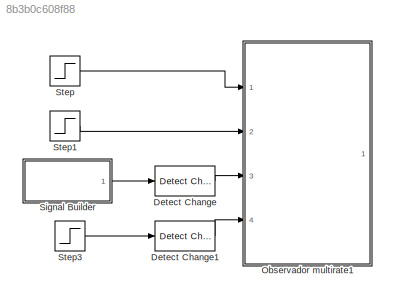
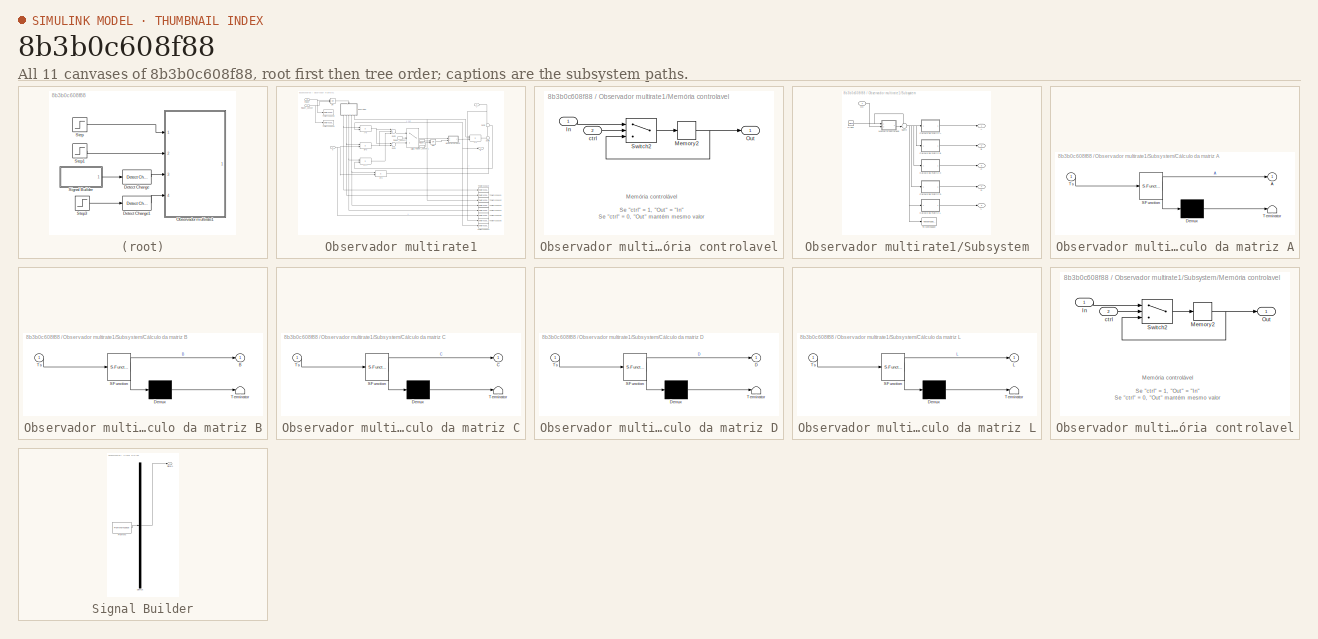
[diagram: thumbnail index - all 11 canvases of the model, root first then tree order]
MODEL slx_8b3b0c608f88
KIND model
BLOCK [Reference] Detect Change  REF=simulink/Logic and Bit
Operations/Detect
Change
  InputProcessing = Inherited
  OutDataTypeStr = boolean
  Ports = [1, 1]
  SourceBlock = simulink/Logic and Bit\nOperations/Detect\nChange
  SourceType = Detect Change
  vinit = 0
BLOCK [Reference] Detect Change1  REF=simulink/Logic and Bit
Operations/Detect
Change
  InputProcessing = Inherited
  OutDataTypeStr = boolean
  Ports = [1, 1]
  SourceBlock = simulink/Logic and Bit\nOperations/Detect\nChange
  SourceType = Detect Change
  vinit = 0
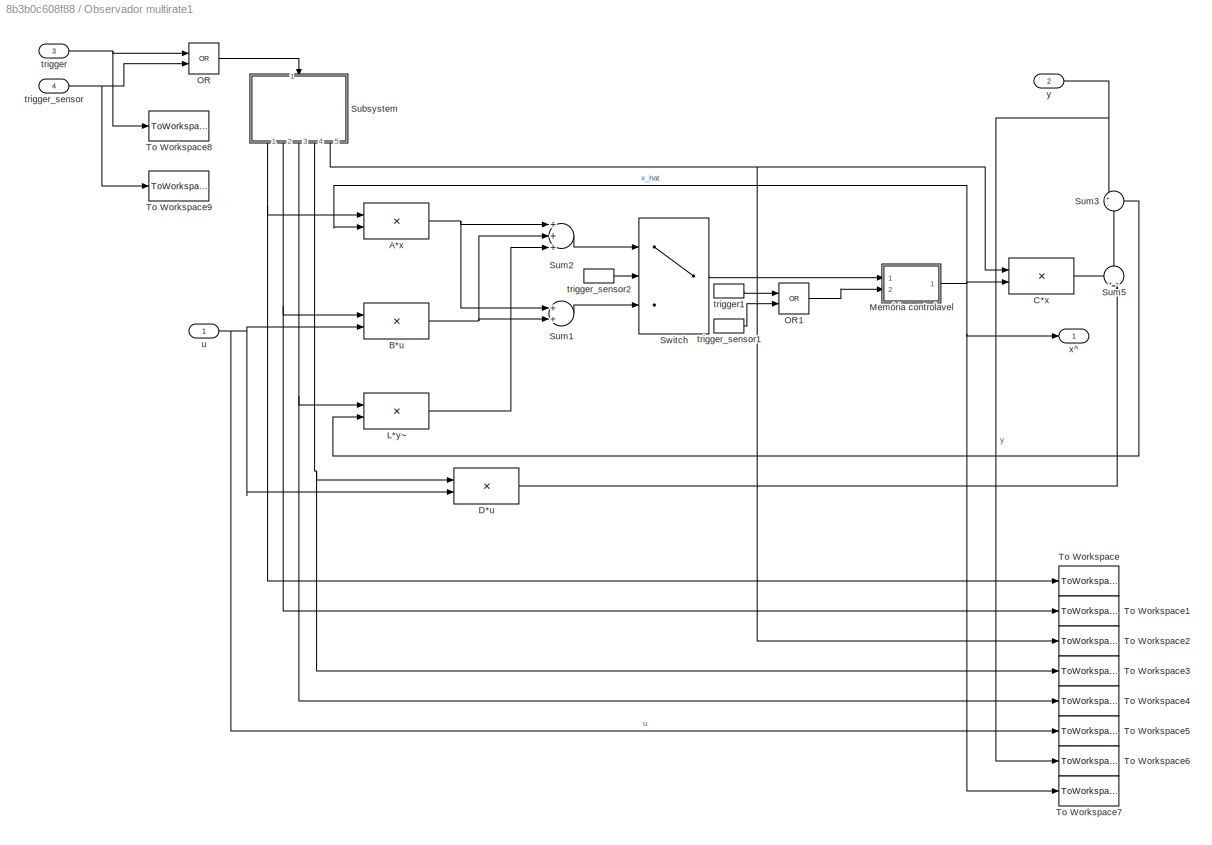
BLOCK [SubSystem] Observador multirate1
  FunctionWithSeparateData = off
  MaskHideContents = off
  MinAlgLoopOccurrences = off
  Opaque = off
  Ports = [4, 1]
  PropExecContextOutsideSubsystem = off
  RTWSystemCode = Auto
  RequestExecContextInheritance = off
BLOCK [Product] Observador multirate1/A*x
  InputSameDT = off
  Multiplication = Matrix(*)
  OutDataTypeStr = Inherit: Inherit via internal rule
  Ports = [2, 1]
  SaturateOnIntegerOverflow = off
BLOCK [Product] Observador multirate1/B*u
  InputSameDT = off
  Multiplication = Matrix(*)
  OutDataTypeStr = Inherit: Inherit via internal rule
  Ports = [2, 1]
  SaturateOnIntegerOverflow = off
BLOCK [Product] Observador multirate1/C*x
  InputSameDT = off
  Multiplication = Matrix(*)
  OutDataTypeStr = Inherit: Inherit via internal rule
  Ports = [2, 1]
  SaturateOnIntegerOverflow = off
BLOCK [Product] Observador multirate1/D*u
  InputSameDT = off
  Multiplication = Matrix(*)
  OutDataTypeStr = Inherit: Inherit via internal rule
  Ports = [2, 1]
  SaturateOnIntegerOverflow = off
BLOCK [Product] Observador multirate1/L*y~
  InputSameDT = off
  Multiplication = Matrix(*)
  OutDataTypeStr = Inherit: Inherit via internal rule
  Ports = [2, 1]
  SaturateOnIntegerOverflow = off
BLOCK [SubSystem] Observador multirate1/Memória controlavel
  FunctionWithSeparateData = off
  MaskHideContents = off
  MinAlgLoopOccurrences = off
  Opaque = off
  Ports = [2, 1]
  PropExecContextOutsideSubsystem = off
  RTWSystemCode = Auto
  RequestExecContextInheritance = off
BLOCK [Inport] Observador multirate1/Memória controlavel/In
  IconDisplay = Port number
BLOCK [Memory] Observador multirate1/Memória controlavel/Memory2
BLOCK [Outport] Observador multirate1/Memória controlavel/Out
  IconDisplay = Port number
BLOCK [Switch] Observador multirate1/Memória controlavel/Switch2
  InputSameDT = off
  SaturateOnIntegerOverflow = off
BLOCK [Inport] Observador multirate1/Memória controlavel/ctrl
  IconDisplay = Port number
  Port = 2
BLOCK [Logic] Observador multirate1/OR
  AllPortsSameDT = off
  Operator = OR
  OutDataTypeStr = boolean
  Ports = [2, 1]
BLOCK [Logic] Observador multirate1/OR1
  AllPortsSameDT = off
  Operator = OR
  OutDataTypeStr = boolean
  Ports = [2, 1]
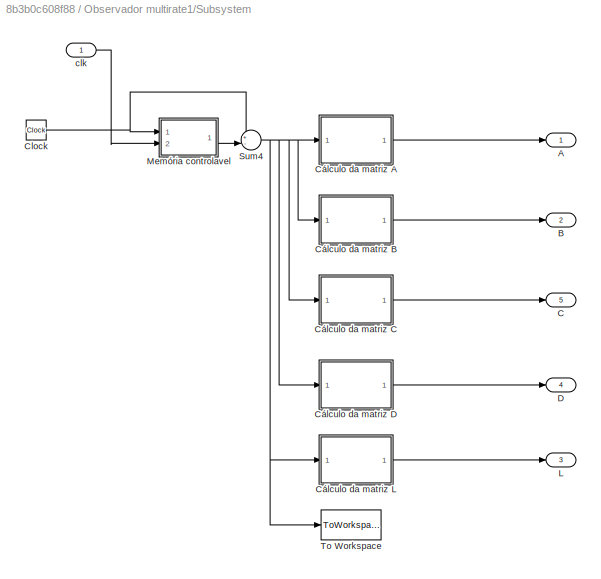
BLOCK [SubSystem] Observador multirate1/Subsystem
  FunctionWithSeparateData = off
  MaskHideContents = off
  MinAlgLoopOccurrences = off
  Opaque = off
  Ports = [1, 5]
  PropExecContextOutsideSubsystem = off
  RTWSystemCode = Auto
  RequestExecContextInheritance = off
BLOCK [Outport] Observador multirate1/Subsystem/A
  IconDisplay = Port number
BLOCK [Outport] Observador multirate1/Subsystem/B
  IconDisplay = Port number
  Port = 2
BLOCK [Outport] Observador multirate1/Subsystem/C
  IconDisplay = Port number
  Port = 5
BLOCK [Clock] Observador multirate1/Subsystem/Clock
BLOCK [SubSystem] Observador multirate1/Subsystem/Cálculo da matriz A
  ErrorFcn = Stateflow.Translate.translate
  FunctionWithSeparateData = off
  MaskHideContents = off
  MinAlgLoopOccurrences = off
  Opaque = off
  PermitHierarchicalResolution = ExplicitOnly
  Ports = [1, 1]
  PropExecContextOutsideSubsystem = off
  RTWSystemCode = Auto
  RequestExecContextInheritance = off
  SFBlockType = MATLAB Function
  TreatAsAtomicUnit = on
BLOCK [Demux] Observador multirate1/Subsystem/Cálculo da matriz A/ Demux 
  Outputs = 1
  Ports = [1, 1]
BLOCK [S-Function] Observador multirate1/Subsystem/Cálculo da matriz A/ SFunction 
  EnableBusSupport = on
  FunctionName = sf_sfun
  PortCounts = [1 2]
  Ports = [1, 2]
  Tag = Stateflow S-Function teste_simples 6
BLOCK [Terminator] Observador multirate1/Subsystem/Cálculo da matriz A/ Terminator 
BLOCK [Outport] Observador multirate1/Subsystem/Cálculo da matriz A/A
  IconDisplay = Port number
BLOCK [Inport] Observador multirate1/Subsystem/Cálculo da matriz A/Ts
  IconDisplay = Port number
BLOCK [SubSystem] Observador multirate1/Subsystem/Cálculo da matriz B
  ErrorFcn = Stateflow.Translate.translate
  FunctionWithSeparateData = off
  MaskHideContents = off
  MinAlgLoopOccurrences = off
  Opaque = off
  PermitHierarchicalResolution = ExplicitOnly
  Ports = [1, 1]
  PropExecContextOutsideSubsystem = off
  RTWSystemCode = Auto
  RequestExecContextInheritance = off
  SFBlockType = MATLAB Function
  TreatAsAtomicUnit = on
BLOCK [Demux] Observador multirate1/Subsystem/Cálculo da matriz B/ Demux 
  Outputs = 1
  Ports = [1, 1]
BLOCK [S-Function] Observador multirate1/Subsystem/Cálculo da matriz B/ SFunction 
  EnableBusSupport = on
  FunctionName = sf_sfun
  PortCounts = [1 2]
  Ports = [1, 2]
  Tag = Stateflow S-Function teste_simples 7
BLOCK [Terminator] Observador multirate1/Subsystem/Cálculo da matriz B/ Terminator 
BLOCK [Outport] Observador multirate1/Subsystem/Cálculo da matriz B/B
  IconDisplay = Port number
BLOCK [Inport] Observador multirate1/Subsystem/Cálculo da matriz B/Ts
  IconDisplay = Port number
BLOCK [SubSystem] Observador multirate1/Subsystem/Cálculo da matriz C
  ErrorFcn = Stateflow.Translate.translate
  FunctionWithSeparateData = off
  MaskHideContents = off
  MinAlgLoopOccurrences = off
  Opaque = off
  PermitHierarchicalResolution = ExplicitOnly
  Ports = [1, 1]
  PropExecContextOutsideSubsystem = off
  RTWSystemCode = Auto
  RequestExecContextInheritance = off
  SFBlockType = MATLAB Function
  TreatAsAtomicUnit = on
BLOCK [Demux] Observador multirate1/Subsystem/Cálculo da matriz C/ Demux 
  Outputs = 1
  Ports = [1, 1]
BLOCK [S-Function] Observador multirate1/Subsystem/Cálculo da matriz C/ SFunction 
  EnableBusSupport = on
  FunctionName = sf_sfun
  PortCounts = [1 2]
  Ports = [1, 2]
  Tag = Stateflow S-Function teste_simples 8
BLOCK [Terminator] Observador multirate1/Subsystem/Cálculo da matriz C/ Terminator 
BLOCK [Outport] Observador multirate1/Subsystem/Cálculo da matriz C/C
  IconDisplay = Port number
BLOCK [Inport] Observador multirate1/Subsystem/Cálculo da matriz C/Ts
  IconDisplay = Port number
BLOCK [SubSystem] Observador multirate1/Subsystem/Cálculo da matriz D
  ErrorFcn = Stateflow.Translate.translate
  FunctionWithSeparateData = off
  MaskHideContents = off
  MinAlgLoopOccurrences = off
  Opaque = off
  PermitHierarchicalResolution = ExplicitOnly
  Ports = [1, 1]
  PropExecContextOutsideSubsystem = off
  RTWSystemCode = Auto
  RequestExecContextInheritance = off
  SFBlockType = MATLAB Function
  TreatAsAtomicUnit = on
BLOCK [Demux] Observador multirate1/Subsystem/Cálculo da matriz D/ Demux 
  Outputs = 1
  Ports = [1, 1]
BLOCK [S-Function] Observador multirate1/Subsystem/Cálculo da matriz D/ SFunction 
  EnableBusSupport = on
  FunctionName = sf_sfun
  PortCounts = [1 2]
  Ports = [1, 2]
  Tag = Stateflow S-Function teste_simples 9
BLOCK [Terminator] Observador multirate1/Subsystem/Cálculo da matriz D/ Terminator 
BLOCK [Outport] Observador multirate1/Subsystem/Cálculo da matriz D/D
  IconDisplay = Port number
BLOCK [Inport] Observador multirate1/Subsystem/Cálculo da matriz D/Ts
  IconDisplay = Port number
BLOCK [SubSystem] Observador multirate1/Subsystem/Cálculo da matriz L
  ErrorFcn = Stateflow.Translate.translate
  FunctionWithSeparateData = off
  MaskHideContents = off
  MinAlgLoopOccurrences = off
  Opaque = off
  PermitHierarchicalResolution = ExplicitOnly
  Ports = [1, 1]
  PropExecContextOutsideSubsystem = off
  RTWSystemCode = Auto
  RequestExecContextInheritance = off
  SFBlockType = MATLAB Function
  TreatAsAtomicUnit = on
BLOCK [Demux] Observador multirate1/Subsystem/Cálculo da matriz L/ Demux 
  Outputs = 1
  Ports = [1, 1]
BLOCK [S-Function] Observador multirate1/Subsystem/Cálculo da matriz L/ SFunction 
  EnableBusSupport = on
  FunctionName = sf_sfun
  PortCounts = [1 2]
  Ports = [1, 2]
  Tag = Stateflow S-Function teste_simples 10
BLOCK [Terminator] Observador multirate1/Subsystem/Cálculo da matriz L/ Terminator 
BLOCK [Outport] Observador multirate1/Subsystem/Cálculo da matriz L/L
  IconDisplay = Port number
BLOCK [Inport] Observador multirate1/Subsystem/Cálculo da matriz L/Ts
  IconDisplay = Port number
BLOCK [Outport] Observador multirate1/Subsystem/D
  IconDisplay = Port number
  Port = 4
BLOCK [Outport] Observador multirate1/Subsystem/L
  IconDisplay = Port number
  Port = 3
BLOCK [SubSystem] Observador multirate1/Subsystem/Memória controlavel
  FunctionWithSeparateData = off
  MaskHideContents = off
  MinAlgLoopOccurrences = off
  Opaque = off
  Ports = [2, 1]
  PropExecContextOutsideSubsystem = off
  RTWSystemCode = Auto
  RequestExecContextInheritance = off
BLOCK [Inport] Observador multirate1/Subsystem/Memória controlavel/In
  IconDisplay = Port number
BLOCK [Memory] Observador multirate1/Subsystem/Memória controlavel/Memory2
BLOCK [Outport] Observador multirate1/Subsystem/Memória controlavel/Out
  IconDisplay = Port number
BLOCK [Switch] Observador multirate1/Subsystem/Memória controlavel/Switch2
  InputSameDT = off
  SaturateOnIntegerOverflow = off
BLOCK [Inport] Observador multirate1/Subsystem/Memória controlavel/ctrl
  IconDisplay = Port number
  Port = 2
BLOCK [Sum] Observador multirate1/Subsystem/Sum4
  IconShape = round
  InputSameDT = off
  Inputs = +-|
  OutDataTypeStr = Inherit: Inherit via internal rule
  Ports = [2, 1]
  SaturateOnIntegerOverflow = off
BLOCK [ToWorkspace] Observador multirate1/Subsystem/To Workspace
  MaxDataPoints = inf
  Ports = [1]
  SampleTime = -1
  VariableName = deltaT
BLOCK [Inport] Observador multirate1/Subsystem/clk
  IconDisplay = Port number
BLOCK [Sum] Observador multirate1/Sum1
  InputSameDT = off
  OutDataTypeStr = Inherit: Inherit via internal rule
  Ports = [2, 1]
  SaturateOnIntegerOverflow = off
BLOCK [Sum] Observador multirate1/Sum2
  InputSameDT = off
  Inputs = +++
  OutDataTypeStr = Inherit: Inherit via internal rule
  Ports = [3, 1]
  SaturateOnIntegerOverflow = off
BLOCK [Sum] Observador multirate1/Sum3
  IconShape = round
  InputSameDT = off
  Inputs = +-
  OutDataTypeStr = Inherit: Inherit via internal rule
  Ports = [2, 1]
  SaturateOnIntegerOverflow = off
BLOCK [Sum] Observador multirate1/Sum5
  IconShape = round
  InputSameDT = off
  Inputs = ++|
  OutDataTypeStr = Inherit: Inherit via internal rule
  Ports = [2, 1]
  SaturateOnIntegerOverflow = off
BLOCK [Switch] Observador multirate1/Switch
  Criteria = u2 > Threshold
  InputSameDT = off
  SaturateOnIntegerOverflow = off
BLOCK [ToWorkspace] Observador multirate1/To Workspace
  MaxDataPoints = inf
  Ports = [1]
  SampleTime = -1
  VariableName = simA
BLOCK [ToWorkspace] Observador multirate1/To Workspace1
  MaxDataPoints = inf
  Ports = [1]
  SampleTime = -1
  VariableName = simB
BLOCK [ToWorkspace] Observador multirate1/To Workspace2
  MaxDataPoints = inf
  Ports = [1]
  SampleTime = -1
  VariableName = simC
BLOCK [ToWorkspace] Observador multirate1/To Workspace3
  MaxDataPoints = inf
  Ports = [1]
  SampleTime = -1
  VariableName = simD
BLOCK [ToWorkspace] Observador multirate1/To Workspace4
  MaxDataPoints = inf
  Ports = [1]
  SampleTime = -1
  VariableName = simL
BLOCK [ToWorkspace] Observador multirate1/To Workspace5
  MaxDataPoints = inf
  Ports = [1]
  SampleTime = -1
  VariableName = simu
BLOCK [ToWorkspace] Observador multirate1/To Workspace6
  MaxDataPoints = inf
  Ports = [1]
  SampleTime = -1
  VariableName = simy
BLOCK [ToWorkspace] Observador multirate1/To Workspace7
  MaxDataPoints = inf
  Ports = [1]
  SampleTime = -1
  VariableName = simx_hat
BLOCK [ToWorkspace] Observador multirate1/To Workspace8
  MaxDataPoints = inf
  Ports = [1]
  SampleTime = -1
  VariableName = trigger
BLOCK [ToWorkspace] Observador multirate1/To Workspace9
  MaxDataPoints = inf
  Ports = [1]
  SampleTime = -1
  VariableName = trigger_sens
BLOCK [Inport] Observador multirate1/trigger
  IconDisplay = Port number
  Port = 3
BLOCK [InportShadow] Observador multirate1/trigger1
  IconDisplay = Port number
  LatchByDelayingOutsideSignal = off
  LatchInputForFeedbackSignals = off
  Port = 3
BLOCK [Inport] Observador multirate1/trigger_sensor
  IconDisplay = Port number
  Port = 4
BLOCK [InportShadow] Observador multirate1/trigger_sensor1
  IconDisplay = Port number
  LatchByDelayingOutsideSignal = off
  LatchInputForFeedbackSignals = off
  Port = 4
BLOCK [InportShadow] Observador multirate1/trigger_sensor2
  IconDisplay = Port number
  LatchByDelayingOutsideSignal = off
  LatchInputForFeedbackSignals = off
  Port = 4
BLOCK [Inport] Observador multirate1/u
  IconDisplay = Port number
BLOCK [Outport] Observador multirate1/x^
  IconDisplay = Port number
BLOCK [Inport] Observador multirate1/y
  IconDisplay = Port number
  Port = 2
BLOCK [SubSystem] Signal Builder
  ClipboardFcn = sigbuilder_block('clipboard');
  CloseFcn = sigbuilder_block('close');
  ContinueFcn = sigbuilder_block('continue');
  CopyFcn = sigbuilder_block('copy');
  DeleteFcn = sigbuilder_block('delete');
  FunctionWithSeparateData = off
  LoadFcn = sigbuilder_block('load');
  MaskHideContents = on
  MinAlgLoopOccurrences = off
  ModelCloseFcn = sigbuilder_block('modelClose');
  NameChangeFcn = sigbuilder_block('namechange');
  Opaque = off
  OpenFcn = sigbuilder_block('open',[437.25 199.5 550.5 399.75 ]);
  PauseFcn = sigbuilder_block('pause');
  Ports = [0, 1]
  PreSaveFcn = sigbuilder_block('preSave');
  PropExecContextOutsideSubsystem = off
  RTWSystemCode = Auto
  RequestExecContextInheritance = off
  StartFcn = sigbuilder_block('start');
  StopFcn = sigbuilder_block('stop');
  Tag = STV Subsys
BLOCK [Demux] Signal Builder/Demux
  Outputs = 1
  Ports = [1, 1]
  Tag = STV Demux
BLOCK [FromWorkspace] Signal Builder/FromWs
  SampleTime = 0
  Tag = STV FromWs
  VariableName = tuvar
  ZeroCross = on
BLOCK [Outport] Signal Builder/Signal 1
  IconDisplay = Port number
  Tag = STV Outport
BLOCK [Step] Step
  After = 10
  SampleTime = 0
  Time = 0
BLOCK [Step] Step1
  After = 20
  SampleTime = 0
  Time = 0
BLOCK [Step] Step3
  SampleTime = 0
  Time = 2.5
ANNOTATION Observador multirate1/Memória controlavel: Memória controlável Se "ctrl" = 1, "Out" = "In" Se "ctrl" = 0, "Out" mantém mesmo valor
ANNOTATION Observador multirate1/Subsystem/Memória controlavel: Memória controlável Se "ctrl" = 1, "Out" = "In" Se "ctrl" = 0, "Out" mantém mesmo valor
LINE Detect Change1:1 -> Observador multirate1:4
LINE Detect Change:1 -> Observador multirate1:3
NET Observador multirate1/A*x:1 -> Observador multirate1/Sum1:1, Observador multirate1/Sum2:1
NET Observador multirate1/B*u:1 -> Observador multirate1/Sum1:2, Observador multirate1/Sum2:2
LINE Observador multirate1/C*x:1 -> Observador multirate1/Sum5:1
LINE Observador multirate1/D*u:1 -> Observador multirate1/Sum5:2
LINE Observador multirate1/L*y~:1 -> Observador multirate1/Sum2:3
LINE Observador multirate1/Memória controlavel/In:1 -> Observador multirate1/Memória controlavel/Switch2:1
NET Observador multirate1/Memória controlavel/Memory2:1 -> Observador multirate1/Memória controlavel/Out:1, Observador multirate1/Memória controlavel/Switch2:3
LINE Observador multirate1/Memória controlavel/Switch2:1 -> Observador multirate1/Memória controlavel/Memory2:1
LINE Observador multirate1/Memória controlavel/ctrl:1 -> Observador multirate1/Memória controlavel/Switch2:2
NET Observador multirate1/Memória controlavel:1 -> Observador multirate1/A*x:2, Observador multirate1/C*x:2, Observador multirate1/To Workspace7:1, Observador multirate1/x^:1
LINE Observador multirate1/OR1:1 -> Observador multirate1/Memória controlavel:2
LINE Observador multirate1/OR:1 -> Observador multirate1/Subsystem:1
NET Observador multirate1/Subsystem/Clock:1 -> Observador multirate1/Subsystem/Memória controlavel:1, Observador multirate1/Subsystem/Sum4:1
LINE Observador multirate1/Subsystem/Cálculo da matriz A:1 -> Observador multirate1/Subsystem/A:1
LINE Observador multirate1/Subsystem/Cálculo da matriz B:1 -> Observador multirate1/Subsystem/B:1
LINE Observador multirate1/Subsystem/Cálculo da matriz C:1 -> Observador multirate1/Subsystem/C:1
LINE Observador multirate1/Subsystem/Cálculo da matriz D:1 -> Observador multirate1/Subsystem/D:1
LINE Observador multirate1/Subsystem/Cálculo da matriz L:1 -> Observador multirate1/Subsystem/L:1
LINE Observador multirate1/Subsystem/Memória controlavel/In:1 -> Observador multirate1/Subsystem/Memória controlavel/Switch2:1
NET Observador multirate1/Subsystem/Memória controlavel/Memory2:1 -> Observador multirate1/Subsystem/Memória controlavel/Out:1, Observador multirate1/Subsystem/Memória controlavel/Switch2:3
LINE Observador multirate1/Subsystem/Memória controlavel/Switch2:1 -> Observador multirate1/Subsystem/Memória controlavel/Memory2:1
LINE Observador multirate1/Subsystem/Memória controlavel/ctrl:1 -> Observador multirate1/Subsystem/Memória controlavel/Switch2:2
LINE Observador multirate1/Subsystem/Memória controlavel:1 -> Observador multirate1/Subsystem/Sum4:2
NET Observador multirate1/Subsystem/Sum4:1 -> Observador multirate1/Subsystem/Cálculo da matriz A:1, Observador multirate1/Subsystem/Cálculo da matriz B:1, Observador multirate1/Subsystem/Cálculo da matriz C:1, Observador multirate1/Subsystem/Cálculo da matriz D:1, Observador multirate1/Subsystem/Cálculo da matriz L:1, Observador multirate1/Subsystem/To Workspace:1
LINE Observador multirate1/Subsystem/clk:1 -> Observador multirate1/Subsystem/Memória controlavel:2
NET Observador multirate1/Subsystem:1 -> Observador multirate1/A*x:1, Observador multirate1/To Workspace:1
NET Observador multirate1/Subsystem:2 -> Observador multirate1/B*u:1, Observador multirate1/To Workspace1:1
NET Observador multirate1/Subsystem:3 -> Observador multirate1/L*y~:1, Observador multirate1/To Workspace4:1
NET Observador multirate1/Subsystem:4 -> Observador multirate1/D*u:1, Observador multirate1/To Workspace3:1
NET Observador multirate1/Subsystem:5 -> Observador multirate1/C*x:1, Observador multirate1/To Workspace2:1
LINE Observador multirate1/Sum1:1 -> Observador multirate1/Switch:3
LINE Observador multirate1/Sum2:1 -> Observador multirate1/Switch:1
LINE Observador multirate1/Sum3:1 -> Observador multirate1/L*y~:2
LINE Observador multirate1/Sum5:1 -> Observador multirate1/Sum3:2
LINE Observador multirate1/Switch:1 -> Observador multirate1/Memória controlavel:1
LINE Observador multirate1/trigger1:1 -> Observador multirate1/OR1:1
NET Observador multirate1/trigger:1 -> Observador multirate1/OR:1, Observador multirate1/To Workspace8:1
LINE Observador multirate1/trigger_sensor1:1 -> Observador multirate1/OR1:2
LINE Observador multirate1/trigger_sensor2:1 -> Observador multirate1/Switch:2
NET Observador multirate1/trigger_sensor:1 -> Observador multirate1/OR:2, Observador multirate1/To Workspace9:1
NET Observador multirate1/u:1 -> Observador multirate1/B*u:2, Observador multirate1/D*u:2, Observador multirate1/To Workspace5:1
NET Observador multirate1/y:1 -> Observador multirate1/Sum3:1, Observador multirate1/To Workspace6:1
LINE Signal Builder:1 -> Detect Change:1
LINE Step1:1 -> Observador multirate1:2
LINE Step3:1 -> Detect Change1:1
LINE Step:1 -> Observador multirate1:1
note: NET lines group one-source signal fan-out (src -> all destinations, sorted); 1:1 wires keep LINE
